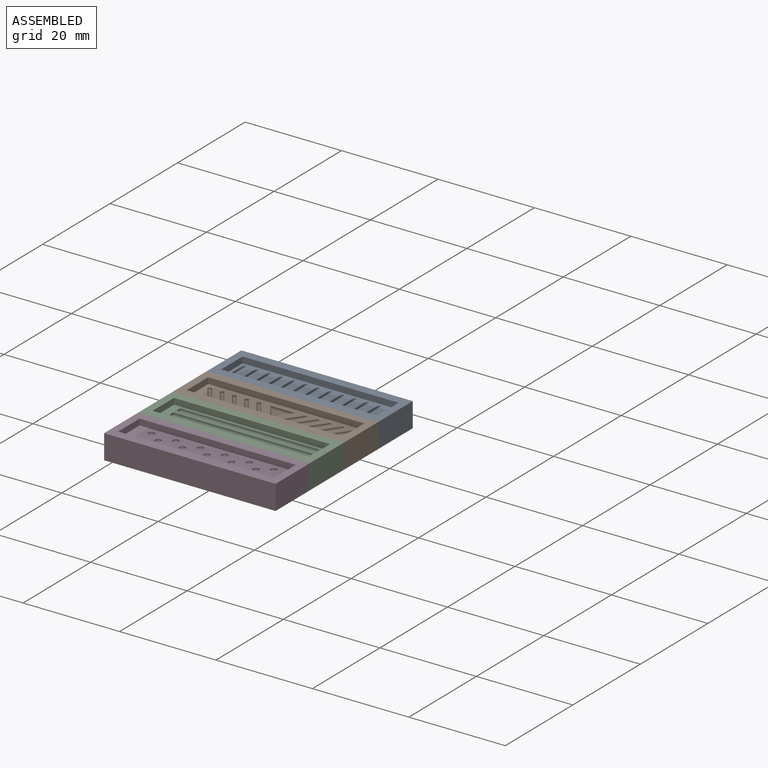
[diagram: assembled view]
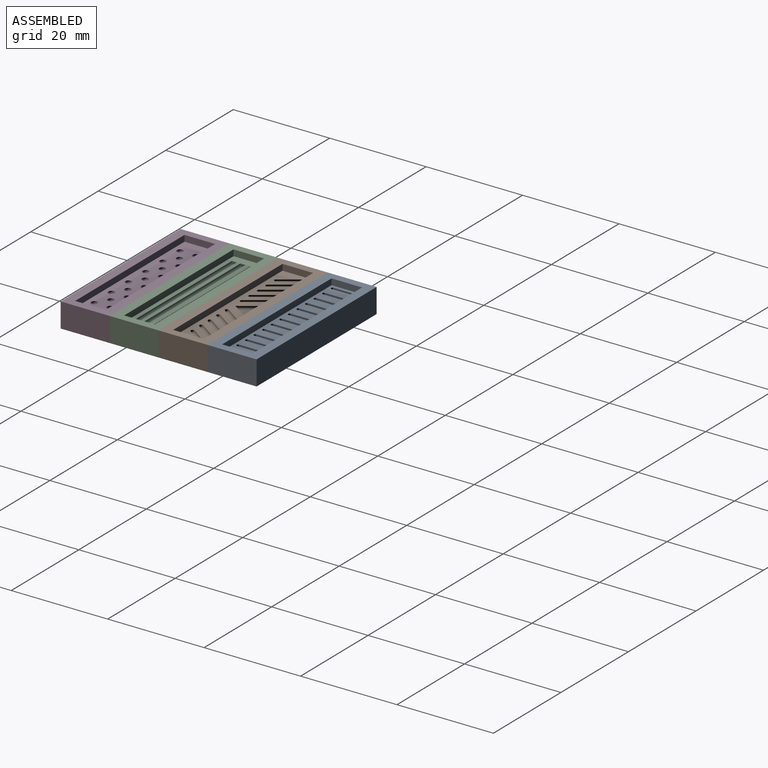
[diagram: assembled view, second angle]
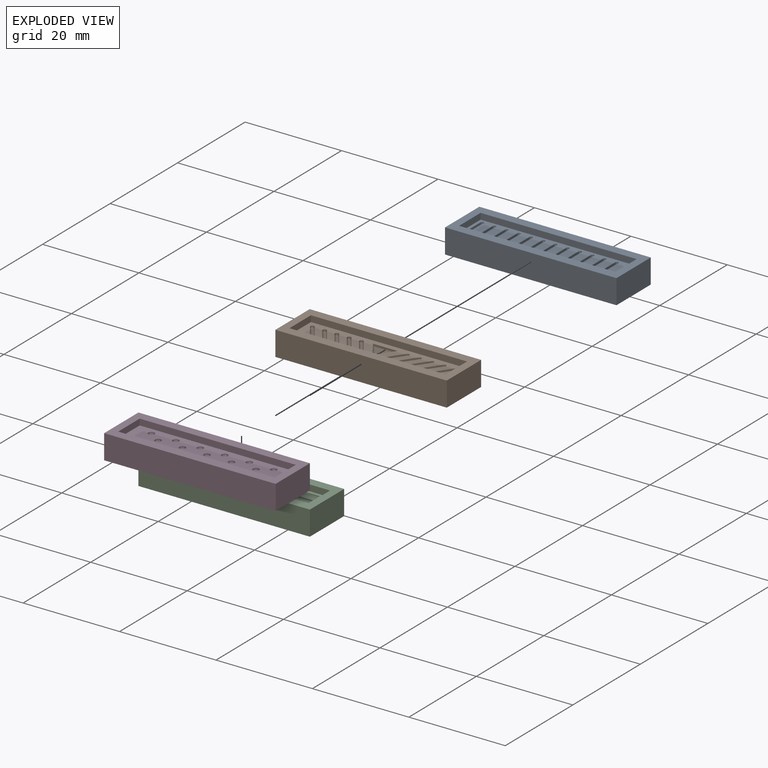
[diagram: exploded view]
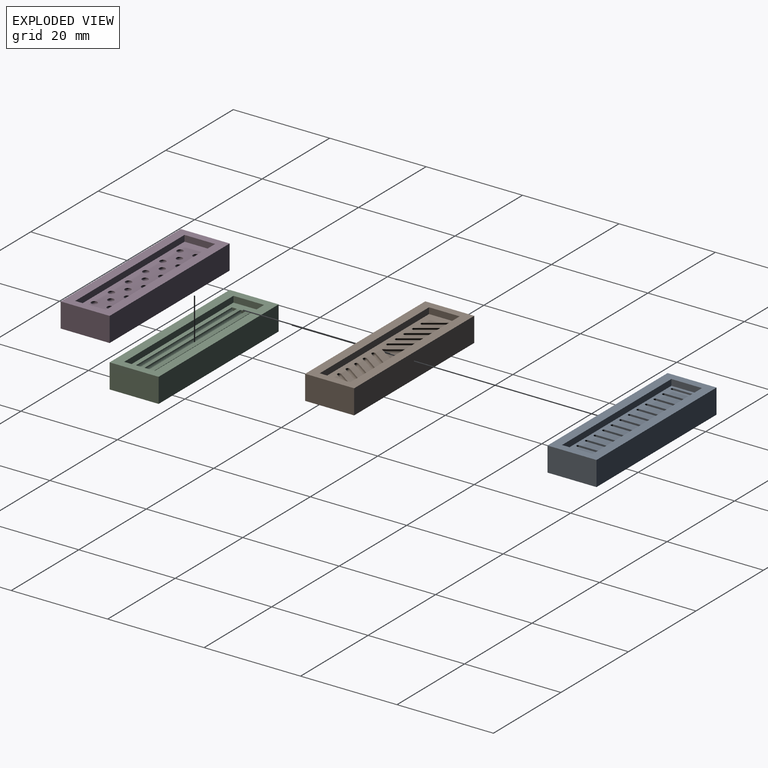
[diagram: exploded view, second angle]
ASSEMBLY  parts=4 mates=9
PART A: 128 faces, bbox 35.6x10.2x5.1 mm
  f0: plane 32.39x6.35mm, normal (0,0,1), area 163.8mm2, adj f7,f8,f9,f10,f11,f12,f13,f14
  f1: plane 10.16x5.08mm, normal (1,0,0), area 51.6mm2, adj f2,f4,f5,f6
  f2: plane 35.56x5.08mm, normal (0,1,0), area 180.6mm2, adj f1,f3,f5,f6
  f3: plane 10.16x5.08mm, normal (-1,0,0), area 51.6mm2, adj f2,f4,f5,f6
  f4: plane 35.56x5.08mm, normal (0,-1,0), area 180.6mm2, adj f1,f3,f5,f6
  f5: plane 35.56x10.16mm, normal (0,0,1), area 155.6mm2, adj f1,f2,f3,f4,f7,f8,f9,f10
  f6: plane 35.56x10.16mm, normal (0,0,-1), area 361.3mm2, adj f1,f2,f3,f4
  f7: plane 6.35x1.27mm, normal (-1,0,0), area 8.1mm2, adj f0,f5,f8,f10
  f8: plane 32.39x1.27mm, normal (0,-1,0), area 41.1mm2, adj f0,f5,f7,f9
  f9: plane 6.35x1.27mm, normal (1,0,0), area 8.1mm2, adj f0,f5,f8,f10
  f10: plane 32.39x1.27mm, normal (0,1,0), area 41.1mm2, adj f0,f5,f7,f9
  f11: cylinder r=0.32mm len=0.64mm, axis (0,0,1), area 0.4mm2, adj f0,f12,f14,f126
  f12: plane 4.57x0.38mm, normal (-1,0,0), area 1.7mm2, adj f0,f11,f13,f127
  f13: cylinder r=0.32mm len=0.64mm, axis (0,0,1), area 0.4mm2, adj f0,f12,f14,f125
  f14: plane 4.57x0.38mm, normal (1,0,0), area 1.7mm2, adj f0,f11,f13,f124
  f15: plane 4.7x0.13mm, normal (0,0,1), area 0.6mm2, adj f124,f125,f126,f127
  f16: plane 4.57x0.38mm, normal (-1,0,0), area 1.7mm2, adj f0,f17,f19,f79
  f17: cylinder r=0.32mm len=0.64mm, axis (0,0,1), area 0.4mm2, adj f0,f16,f18,f77
  f18: plane 4.57x0.38mm, normal (1,0,0), area 1.7mm2, adj f0,f17,f19,f76
  f19: cylinder r=0.32mm len=0.64mm, axis (0,0,1), area 0.4mm2, adj f0,f16,f18,f78
  f20: plane 4.7x0.13mm, normal (0,0,1), area 0.6mm2, adj f76,f77,f78,f79
  f21: plane 4.57x0.38mm, normal (-1,0,0), area 1.7mm2, adj f0,f22,f24,f83
  f22: cylinder r=0.32mm len=0.64mm, axis (0,0,1), area 0.4mm2, adj f0,f21,f23,f81
  f23: plane 4.57x0.38mm, normal (1,0,0), area 1.7mm2, adj f0,f22,f24,f80
  f24: cylinder r=0.32mm len=0.64mm, axis (0,0,1), area 0.4mm2, adj f0,f21,f23,f82
  f25: plane 4.7x0.13mm, normal (0,0,1), area 0.6mm2, adj f80,f81,f82,f83
  f26: cylinder r=0.32mm len=0.64mm, axis (0,0,1), area 0.4mm2, adj f0,f27,f29,f86
  f27: plane 4.57x0.38mm, normal (-1,0,0), area 1.7mm2, adj f0,f26,f28,f87
  f28: cylinder r=0.32mm len=0.64mm, axis (0,0,1), area 0.4mm2, adj f0,f27,f29,f85
  f29: plane 4.57x0.38mm, normal (1,0,0), area 1.7mm2, adj f0,f26,f28,f84
  f30: plane 4.7x0.13mm, normal (0,0,1), area 0.6mm2, adj f84,f85,f86,f87
  f31: cylinder r=0.32mm len=0.64mm, axis (0,0,1), area 0.4mm2, adj f0,f32,f34,f90
  f32: plane 4.57x0.38mm, normal (-1,0,0), area 1.7mm2, adj f0,f31,f33,f91
  f33: cylinder r=0.32mm len=0.64mm, axis (0,0,1), area 0.4mm2, adj f0,f32,f34,f89
  f34: plane 4.57x0.38mm, normal (1,0,0), area 1.7mm2, adj f0,f31,f33,f88
  f35: plane 4.7x0.13mm, normal (0,0,1), area 0.6mm2, adj f88,f89,f90,f91
  f36: plane 4.57x0.38mm, normal (-1,0,0), area 1.7mm2, adj f0,f37,f39,f95
  f37: cylinder r=0.32mm len=0.64mm, axis (0,0,1), area 0.4mm2, adj f0,f36,f38,f93
  f38: plane 4.57x0.38mm, normal (1,0,0), area 1.7mm2, adj f0,f37,f39,f92
  f39: cylinder r=0.32mm len=0.64mm, axis (0,0,1), area 0.4mm2, adj f0,f36,f38,f94
  f40: plane 4.7x0.13mm, normal (0,0,1), area 0.6mm2, adj f92,f93,f94,f95
  f41: plane 4.57x0.38mm, normal (-1,0,0), area 1.7mm2, adj f0,f42,f44,f99
  f42: cylinder r=0.32mm len=0.64mm, axis (0,0,1), area 0.4mm2, adj f0,f41,f43,f97
  f43: plane 4.57x0.38mm, normal (1,0,0), area 1.7mm2, adj f0,f42,f44,f96
  f44: cylinder r=0.32mm len=0.64mm, axis (0,0,1), area 0.4mm2, adj f0,f41,f43,f98
  f45: plane 4.7x0.13mm, normal (0,0,1), area 0.6mm2, adj f96,f97,f98,f99
  f46: plane 4.57x0.38mm, normal (-1,0,0), area 1.7mm2, adj f0,f47,f49,f103
  f47: cylinder r=0.32mm len=0.64mm, axis (0,0,1), area 0.4mm2, adj f0,f46,f48,f101
  f48: plane 4.57x0.38mm, normal (1,0,0), area 1.7mm2, adj f0,f47,f49,f100
  f49: cylinder r=0.32mm len=0.64mm, axis (0,0,1), area 0.4mm2, adj f0,f46,f48,f102
  f50: plane 4.7x0.13mm, normal (0,0,1), area 0.6mm2, adj f100,f101,f102,f103
  f51: plane 4.57x0.38mm, normal (-1,0,0), area 1.7mm2, adj f0,f52,f54,f107
  f52: cylinder r=0.32mm len=0.64mm, axis (0,0,1), area 0.4mm2, adj f0,f51,f53,f105
  f53: plane 4.57x0.38mm, normal (1,0,0), area 1.7mm2, adj f0,f52,f54,f104
  f54: cylinder r=0.32mm len=0.64mm, axis (0,0,1), area 0.4mm2, adj f0,f51,f53,f106
  f55: plane 4.7x0.13mm, normal (0,0,1), area 0.6mm2, adj f104,f105,f106,f107
  f56: cylinder r=0.32mm len=0.64mm, axis (0,0,1), area 0.4mm2, adj f0,f57,f59,f110
  f57: plane 4.57x0.38mm, normal (-1,0,0), area 1.7mm2, adj f0,f56,f58,f111
  f58: cylinder r=0.32mm len=0.64mm, axis (0,0,1), area 0.4mm2, adj f0,f57,f59,f109
  f59: plane 4.57x0.38mm, normal (1,0,0), area 1.7mm2, adj f0,f56,f58,f108
  f60: plane 4.7x0.13mm, normal (0,0,1), area 0.6mm2, adj f108,f109,f110,f111
  f61: cylinder r=0.32mm len=0.64mm, axis (0,0,1), area 0.4mm2, adj f0,f62,f64,f114
  f62: plane 4.57x0.38mm, normal (-1,0,0), area 1.7mm2, adj f0,f61,f63,f115
  f63: cylinder r=0.32mm len=0.64mm, axis (0,0,1), area 0.4mm2, adj f0,f62,f64,f113
  f64: plane 4.57x0.38mm, normal (1,0,0), area 1.7mm2, adj f0,f61,f63,f112
  f65: plane 4.7x0.13mm, normal (0,0,1), area 0.6mm2, adj f112,f113,f114,f115
  f66: cylinder r=0.32mm len=0.64mm, axis (0,0,1), area 0.4mm2, adj f0,f67,f69,f118
  f67: plane 4.57x0.38mm, normal (-1,0,0), area 1.7mm2, adj f0,f66,f68,f119
  f68: cylinder r=0.32mm len=0.64mm, axis (0,0,1), area 0.4mm2, adj f0,f67,f69,f117
  f69: plane 4.57x0.38mm, normal (1,0,0), area 1.7mm2, adj f0,f66,f68,f116
  f70: plane 4.7x0.13mm, normal (0,0,1), area 0.6mm2, adj f116,f117,f118,f119
  f71: cylinder r=0.32mm len=0.64mm, axis (0,0,1), area 0.4mm2, adj f0,f72,f74,f122
  f72: plane 4.57x0.38mm, normal (-1,0,0), area 1.7mm2, adj f0,f71,f73,f123
  f73: cylinder r=0.32mm len=0.64mm, axis (0,0,1), area 0.4mm2, adj f0,f72,f74,f121
  f74: plane 4.57x0.38mm, normal (1,0,0), area 1.7mm2, adj f0,f71,f73,f120
  f75: plane 4.7x0.13mm, normal (0,0,1), area 0.6mm2, adj f120,f121,f122,f123
  f76: cylinder r=0.25mm len=4.57mm, axis (0,-1,0), area 1.8mm2, adj f18,f20,f77,f78
  f77: torus R=0.06mm, axis (0,0,1), area 0.3mm2, adj f17,f20,f76,f79
  f78: torus R=0.06mm, axis (0,0,1), area 0.3mm2, adj f19,f20,f76,f79
  f79: cylinder r=0.25mm len=4.57mm, axis (0,1,0), area 1.8mm2, adj f16,f20,f77,f78
  f80: cylinder r=0.25mm len=4.57mm, axis (0,-1,0), area 1.8mm2, adj f23,f25,f81,f82
  f81: torus R=0.06mm, axis (0,0,1), area 0.3mm2, adj f22,f25,f80,f83
  f82: torus R=0.06mm, axis (0,0,1), area 0.3mm2, adj f24,f25,f80,f83
  f83: cylinder r=0.25mm len=4.57mm, axis (0,1,0), area 1.8mm2, adj f21,f25,f81,f82
  f84: cylinder r=0.25mm len=4.57mm, axis (0,-1,0), area 1.8mm2, adj f29,f30,f85,f86
  f85: torus R=0.06mm, axis (0,0,1), area 0.3mm2, adj f28,f30,f84,f87
  f86: torus R=0.06mm, axis (0,0,1), area 0.3mm2, adj f26,f30,f84,f87
  f87: cylinder r=0.25mm len=4.57mm, axis (0,1,0), area 1.8mm2, adj f27,f30,f85,f86
  f88: cylinder r=0.25mm len=4.57mm, axis (0,-1,0), area 1.8mm2, adj f34,f35,f89,f90
  f89: torus R=0.06mm, axis (0,0,1), area 0.3mm2, adj f33,f35,f88,f91
  f90: torus R=0.06mm, axis (0,0,1), area 0.3mm2, adj f31,f35,f88,f91
  f91: cylinder r=0.25mm len=4.57mm, axis (0,1,0), area 1.8mm2, adj f32,f35,f89,f90
  f92: cylinder r=0.25mm len=4.57mm, axis (0,-1,0), area 1.8mm2, adj f38,f40,f93,f94
  f93: torus R=0.06mm, axis (0,0,1), area 0.3mm2, adj f37,f40,f92,f95
  f94: torus R=0.06mm, axis (0,0,1), area 0.3mm2, adj f39,f40,f92,f95
  f95: cylinder r=0.25mm len=4.57mm, axis (0,1,0), area 1.8mm2, adj f36,f40,f93,f94
  f96: cylinder r=0.25mm len=4.57mm, axis (0,-1,0), area 1.8mm2, adj f43,f45,f97,f98
  f97: torus R=0.06mm, axis (0,0,1), area 0.3mm2, adj f42,f45,f96,f99
  f98: torus R=0.06mm, axis (0,0,1), area 0.3mm2, adj f44,f45,f96,f99
  f99: cylinder r=0.25mm len=4.57mm, axis (0,1,0), area 1.8mm2, adj f41,f45,f97,f98
  f100: cylinder r=0.25mm len=4.57mm, axis (0,-1,0), area 1.8mm2, adj f48,f50,f101,f102
  f101: torus R=0.06mm, axis (0,0,1), area 0.3mm2, adj f47,f50,f100,f103
  f102: torus R=0.06mm, axis (0,0,1), area 0.3mm2, adj f49,f50,f100,f103
  f103: cylinder r=0.25mm len=4.57mm, axis (0,1,0), area 1.8mm2, adj f46,f50,f101,f102
  f104: cylinder r=0.25mm len=4.57mm, axis (0,-1,0), area 1.8mm2, adj f53,f55,f105,f106
  f105: torus R=0.06mm, axis (0,0,1), area 0.3mm2, adj f52,f55,f104,f107
  f106: torus R=0.06mm, axis (0,0,1), area 0.3mm2, adj f54,f55,f104,f107
  f107: cylinder r=0.25mm len=4.57mm, axis (0,1,0), area 1.8mm2, adj f51,f55,f105,f106
  f108: cylinder r=0.25mm len=4.57mm, axis (0,-1,0), area 1.8mm2, adj f59,f60,f109,f110
  f109: torus R=0.06mm, axis (0,0,1), area 0.3mm2, adj f58,f60,f108,f111
  f110: torus R=0.06mm, axis (0,0,1), area 0.3mm2, adj f56,f60,f108,f111
  f111: cylinder r=0.25mm len=4.57mm, axis (0,1,0), area 1.8mm2, adj f57,f60,f109,f110
  f112: cylinder r=0.25mm len=4.57mm, axis (0,-1,0), area 1.8mm2, adj f64,f65,f113,f114
  f113: torus R=0.06mm, axis (0,0,1), area 0.3mm2, adj f63,f65,f112,f115
  f114: torus R=0.06mm, axis (0,0,1), area 0.3mm2, adj f61,f65,f112,f115
  f115: cylinder r=0.25mm len=4.57mm, axis (0,1,0), area 1.8mm2, adj f62,f65,f113,f114
  f116: cylinder r=0.25mm len=4.57mm, axis (0,-1,0), area 1.8mm2, adj f69,f70,f117,f118
  f117: torus R=0.06mm, axis (0,0,1), area 0.3mm2, adj f68,f70,f116,f119
  f118: torus R=0.06mm, axis (0,0,1), area 0.3mm2, adj f66,f70,f116,f119
  f119: cylinder r=0.25mm len=4.57mm, axis (0,1,0), area 1.8mm2, adj f67,f70,f117,f118
  f120: cylinder r=0.25mm len=4.57mm, axis (0,-1,0), area 1.8mm2, adj f74,f75,f121,f122
  f121: torus R=0.06mm, axis (0,0,1), area 0.3mm2, adj f73,f75,f120,f123
  f122: torus R=0.06mm, axis (0,0,1), area 0.3mm2, adj f71,f75,f120,f123
  f123: cylinder r=0.25mm len=4.57mm, axis (0,1,0), area 1.8mm2, adj f72,f75,f121,f122
  f124: cylinder r=0.25mm len=4.57mm, axis (0,-1,0), area 1.8mm2, adj f14,f15,f125,f126
  f125: torus R=0.06mm, axis (0,0,1), area 0.3mm2, adj f13,f15,f124,f127
  f126: torus R=0.06mm, axis (0,0,1), area 0.3mm2, adj f11,f15,f124,f127
  f127: cylinder r=0.25mm len=4.57mm, axis (0,1,0), area 1.8mm2, adj f12,f15,f125,f126
PART B: 88 faces, bbox 35.6x10.2x5.1 mm
  f0: plane 32.39x6.35mm, normal (0,0,1), area 157.8mm2, adj f7,f8,f9,f10,f11,f12,f13,f14
  f1: plane 10.16x5.08mm, normal (1,0,0), area 51.6mm2, adj f2,f4,f5,f6
  f2: plane 35.56x5.08mm, normal (0,1,0), area 180.6mm2, adj f1,f3,f5,f6
  f3: plane 10.16x5.08mm, normal (-1,0,0), area 51.6mm2, adj f2,f4,f5,f6
  f4: plane 35.56x5.08mm, normal (0,-1,0), area 180.6mm2, adj f1,f3,f5,f6
  f5: plane 35.56x10.16mm, normal (0,0,1), area 155.6mm2, adj f1,f2,f3,f4,f7,f8,f9,f10
  f6: plane 35.56x10.16mm, normal (0,0,-1), area 361.3mm2, adj f1,f2,f3,f4
  f7: plane 6.35x1.27mm, normal (-1,0,0), area 8.1mm2, adj f0,f5,f8,f10
  f8: plane 32.39x1.27mm, normal (0,-1,0), area 41.1mm2, adj f0,f5,f7,f9
  f9: plane 6.35x1.27mm, normal (1,0,0), area 8.1mm2, adj f0,f5,f8,f10
  f10: plane 32.39x1.27mm, normal (0,1,0), area 41.1mm2, adj f0,f5,f7,f9
  f11: cylinder r=0.38mm len=0.69mm, axis (0,0,1), area 0.3mm2, adj f0,f12,f14,f84
  f12: plane 3.64x2.55mm, normal (-0.82,-0.57,0), area 1.1mm2, adj f0,f11,f13,f82
  f13: cylinder r=0.38mm len=0.69mm, axis (0,0,1), area 0.3mm2, adj f0,f12,f14,f83
  f14: plane 3.64x2.55mm, normal (0.82,0.57,0), area 1.1mm2, adj f0,f11,f13,f82
  f15: plane 3.64x2.55mm, normal (0.82,-0.57,0), area 1.1mm2, adj f0,f16,f18,f55
  f16: cylinder r=0.38mm len=0.69mm, axis (0,0,1), area 0.3mm2, adj f0,f15,f17,f57
  f17: plane 3.64x2.55mm, normal (-0.82,0.57,0), area 1.1mm2, adj f0,f16,f18,f55
  f18: cylinder r=0.38mm len=0.69mm, axis (0,0,1), area 0.3mm2, adj f0,f15,f17,f56
  f19: plane 3.7x2.54mm, normal (0.82,0.57,0), area 1.1mm2, adj f0,f20,f21,f87
  f20: plane 3.7x2.54mm, normal (-0.82,0.57,0), area 1.1mm2, adj f0,f19,f21,f85
  f21: plane 5.08x0.25mm, normal (0,-1,0), area 1.3mm2, adj f0,f19,f20,f86
  f22: plane 3.64x2.64mm, normal (0,0,1), area 4.8mm2, adj f85,f86,f87
  f23: plane 3.64x2.55mm, normal (0.82,-0.57,0), area 1.1mm2, adj f0,f24,f26,f64
  f24: cylinder r=0.38mm len=0.69mm, axis (0,0,1), area 0.3mm2, adj f0,f23,f25,f66
  f25: plane 3.64x2.55mm, normal (-0.82,0.57,0), area 1.1mm2, adj f0,f24,f26,f64
  f26: cylinder r=0.38mm len=0.69mm, axis (0,0,1), area 0.3mm2, adj f0,f23,f25,f65
  f27: cylinder r=0.38mm len=0.69mm, axis (0,0,1), area 0.3mm2, adj f0,f28,f30,f68
  f28: plane 3.64x2.55mm, normal (0.82,-0.57,0), area 1.1mm2, adj f0,f27,f29,f67
  f29: cylinder r=0.38mm len=0.69mm, axis (0,0,1), area 0.3mm2, adj f0,f28,f30,f69
  f30: plane 3.64x2.55mm, normal (-0.82,0.57,0), area 1.1mm2, adj f0,f27,f29,f67
  f31: plane 3.64x2.55mm, normal (0.82,-0.57,0), area 1.1mm2, adj f0,f32,f34,f58
  f32: cylinder r=0.38mm len=0.69mm, axis (0,0,1), area 0.3mm2, adj f0,f31,f33,f60
  f33: plane 3.64x2.55mm, normal (-0.82,0.57,0), area 1.1mm2, adj f0,f32,f34,f58
  f34: cylinder r=0.38mm len=0.69mm, axis (0,0,1), area 0.3mm2, adj f0,f31,f33,f59
  f35: plane 3.64x2.55mm, normal (-0.82,0.57,0), area 1.1mm2, adj f0,f36,f38,f61
  f36: cylinder r=0.38mm len=0.69mm, axis (0,0,1), area 0.3mm2, adj f0,f35,f37,f62
  f37: plane 3.64x2.55mm, normal (0.82,-0.57,0), area 1.1mm2, adj f0,f36,f38,f61
  f38: cylinder r=0.38mm len=0.69mm, axis (0,0,1), area 0.3mm2, adj f0,f35,f37,f63
  f39: cylinder r=0.38mm len=0.69mm, axis (0,0,1), area 0.3mm2, adj f0,f40,f42,f78
  f40: plane 3.64x2.55mm, normal (-0.82,-0.57,0), area 1.1mm2, adj f0,f39,f41,f76
  f41: cylinder r=0.38mm len=0.69mm, axis (0,0,1), area 0.3mm2, adj f0,f40,f42,f77
  f42: plane 3.64x2.55mm, normal (0.82,0.57,0), area 1.1mm2, adj f0,f39,f41,f76
  f43: cylinder r=0.38mm len=0.69mm, axis (0,0,1), area 0.3mm2, adj f0,f44,f46,f81
  f44: plane 3.64x2.55mm, normal (-0.82,-0.57,0), area 1.1mm2, adj f0,f43,f45,f80
  f45: cylinder r=0.38mm len=0.69mm, axis (0,0,1), area 0.3mm2, adj f0,f44,f46,f79
  f46: plane 3.64x2.55mm, normal (0.82,0.57,0), area 1.1mm2, adj f0,f43,f45,f80
  f47: cylinder r=0.38mm len=0.69mm, axis (0,0,1), area 0.3mm2, adj f0,f48,f50,f72
  f48: plane 3.64x2.55mm, normal (-0.82,-0.57,0), area 1.1mm2, adj f0,f47,f49,f70
  f49: cylinder r=0.38mm len=0.69mm, axis (0,0,1), area 0.3mm2, adj f0,f48,f50,f71
  f50: plane 3.64x2.55mm, normal (0.82,0.57,0), area 1.1mm2, adj f0,f47,f49,f70
  f51: cylinder r=0.38mm len=0.69mm, axis (0,0,1), area 0.3mm2, adj f0,f52,f54,f75
  f52: plane 3.64x2.55mm, normal (-0.82,-0.57,0), area 1.1mm2, adj f0,f51,f53,f73
  f53: cylinder r=0.38mm len=0.69mm, axis (0,0,1), area 0.3mm2, adj f0,f52,f54,f74
  f54: plane 3.64x2.55mm, normal (0.82,0.57,0), area 1.1mm2, adj f0,f51,f53,f73
  f55: cylinder r=0.38mm len=4.08mm, axis (-0.57,-0.82,0), area 5.3mm2, adj f15,f17,f56,f57
  f56: sphere r=0.38mm, area 0.5mm2, adj f18,f55
  f57: sphere r=0.38mm, area 0.5mm2, adj f16,f55
  f58: cylinder r=0.38mm len=4.08mm, axis (-0.57,-0.82,0), area 5.3mm2, adj f31,f33,f59,f60
  f59: sphere r=0.38mm, area 0.5mm2, adj f34,f58
  f60: sphere r=0.38mm, area 0.5mm2, adj f32,f58
  f61: cylinder r=0.38mm len=4.08mm, axis (-0.57,-0.82,0), area 5.3mm2, adj f35,f37,f62,f63
  f62: sphere r=0.38mm, area 0.5mm2, adj f36,f61
  f63: sphere r=0.38mm, area 0.5mm2, adj f38,f61
  f64: cylinder r=0.38mm len=4.08mm, axis (-0.57,-0.82,0), area 5.3mm2, adj f23,f25,f65,f66
  f65: sphere r=0.38mm, area 0.5mm2, adj f26,f64
  f66: sphere r=0.38mm, area 0.5mm2, adj f24,f64
  f67: cylinder r=0.38mm len=4.08mm, axis (-0.57,-0.82,0), area 5.3mm2, adj f28,f30,f68,f69
  f68: sphere r=0.38mm, area 0.5mm2, adj f27,f67
  f69: sphere r=0.38mm, area 0.5mm2, adj f29,f67
  f70: cylinder r=0.38mm len=4.08mm, axis (0.57,-0.82,0), area 5.3mm2, adj f48,f50,f71,f72
  f71: sphere r=0.38mm, area 0.5mm2, adj f49,f70
  f72: sphere r=0.38mm, area 0.5mm2, adj f47,f70
  f73: cylinder r=0.38mm len=4.08mm, axis (0.57,-0.82,0), area 5.3mm2, adj f52,f54,f74,f75
  f74: sphere r=0.38mm, area 0.5mm2, adj f53,f73
  f75: sphere r=0.38mm, area 0.5mm2, adj f51,f73
  f76: cylinder r=0.38mm len=4.08mm, axis (0.57,-0.82,0), area 5.3mm2, adj f40,f42,f77,f78
  f77: sphere r=0.38mm, area 0.5mm2, adj f41,f76
  f78: sphere r=0.38mm, area 0.5mm2, adj f39,f76
  f79: sphere r=0.38mm, area 0.5mm2, adj f45,f80
  f80: cylinder r=0.38mm len=4.08mm, axis (-0.57,0.82,0), area 5.3mm2, adj f44,f46,f79,f81
  f81: sphere r=0.38mm, area 0.5mm2, adj f43,f80
  f82: cylinder r=0.38mm len=4.08mm, axis (0.57,-0.82,0), area 5.3mm2, adj f12,f14,f83,f84
  f83: sphere r=0.38mm, area 0.5mm2, adj f13,f82
  f84: sphere r=0.38mm, area 0.5mm2, adj f11,f82
  f85: cylinder r=0.38mm len=3.91mm, axis (0.57,0.82,0), area 2.4mm2, adj f20,f22,f86,f87
  f86: cylinder r=0.38mm len=5.08mm, axis (-1,0,0), area 2.7mm2, adj f21,f22,f85,f87
  f87: cylinder r=0.38mm len=3.91mm, axis (0.57,-0.82,0), area 2.4mm2, adj f19,f22,f85,f86
PART C: 26 faces, bbox 35.6x10.2x5.1 mm
  f0: plane 32.39x6.35mm, normal (0,0,1), area 117.4mm2, adj f7,f8,f9,f10,f11,f12,f13,f14
  f1: plane 10.16x5.08mm, normal (1,0,0), area 51.6mm2, adj f2,f4,f5,f6
  f2: plane 35.56x5.08mm, normal (0,1,0), area 180.6mm2, adj f1,f3,f5,f6
  f3: plane 10.16x5.08mm, normal (-1,0,0), area 51.6mm2, adj f2,f4,f5,f6
  f4: plane 35.56x5.08mm, normal (0,-1,0), area 180.6mm2, adj f1,f3,f5,f6
  f5: plane 35.56x10.16mm, normal (0,0,1), area 155.6mm2, adj f1,f2,f3,f4,f7,f8,f9,f10
  f6: plane 35.56x10.16mm, normal (0,0,-1), area 361.3mm2, adj f1,f2,f3,f4
  f7: plane 6.35x1.27mm, normal (-1,0,0), area 8.1mm2, adj f0,f5,f8,f10
  f8: plane 32.39x1.27mm, normal (0,-1,0), area 41.1mm2, adj f0,f5,f7,f9
  f9: plane 6.35x1.27mm, normal (1,0,0), area 8.1mm2, adj f0,f5,f8,f10
  f10: plane 32.39x1.27mm, normal (0,1,0), area 41.1mm2, adj f0,f5,f7,f9
  f11: plane 1.02x0.64mm, normal (-1,0,0), area 0.5mm2, adj f0,f12,f14,f25
  f12: plane 28.96x0.13mm, normal (0,-1,0), area 3.7mm2, adj f0,f11,f13,f25
  f13: plane 1.02x0.64mm, normal (1,0,0), area 0.5mm2, adj f0,f12,f14,f25
  f14: plane 28.96x0.13mm, normal (0,1,0), area 3.7mm2, adj f0,f11,f13,f25
  f15: plane 28.96x0.13mm, normal (0,1,0), area 3.7mm2, adj f0,f16,f18,f24
  f16: plane 1.02x0.64mm, normal (-1,0,0), area 0.5mm2, adj f0,f15,f17,f24
  f17: plane 28.96x0.13mm, normal (0,-1,0), area 3.7mm2, adj f0,f16,f18,f24
  f18: plane 1.02x0.64mm, normal (1,0,0), area 0.5mm2, adj f0,f15,f17,f24
  f19: plane 28.96x0.13mm, normal (0,1,0), area 3.7mm2, adj f0,f20,f22,f23
  f20: plane 1.02x0.64mm, normal (-1,0,0), area 0.5mm2, adj f0,f19,f21,f23
  f21: plane 28.96x0.13mm, normal (0,-1,0), area 3.7mm2, adj f0,f20,f22,f23
  f22: plane 1.02x0.64mm, normal (1,0,0), area 0.5mm2, adj f0,f19,f21,f23
  f23: cylinder r=0.51mm len=28.96mm, axis (1,0,0), area 46.2mm2, adj f19,f20,f21,f22
  f24: cylinder r=0.51mm len=28.96mm, axis (1,0,0), area 46.2mm2, adj f15,f16,f17,f18
  f25: cylinder r=0.51mm len=28.96mm, axis (1,0,0), area 46.2mm2, adj f11,f12,f13,f14
PART D: 62 faces, bbox 35.6x10.2x5.1 mm
  f0: plane 32.39x6.35mm, normal (0,0,1), area 184.1mm2, adj f7,f8,f9,f10,f11,f13,f15,f17
  f1: plane 10.16x5.08mm, normal (1,0,0), area 51.6mm2, adj f2,f4,f5,f6
  f2: plane 35.56x5.08mm, normal (0,1,0), area 180.6mm2, adj f1,f3,f5,f6
  f3: plane 10.16x5.08mm, normal (-1,0,0), area 51.6mm2, adj f2,f4,f5,f6
  f4: plane 35.56x5.08mm, normal (0,-1,0), area 180.6mm2, adj f1,f3,f5,f6
  f5: plane 35.56x10.16mm, normal (0,0,1), area 155.6mm2, adj f1,f2,f3,f4,f7,f8,f9,f10
  f6: plane 35.56x10.16mm, normal (0,0,-1), area 361.3mm2, adj f1,f2,f3,f4
  f7: plane 6.35x1.27mm, normal (-1,0,0), area 8.1mm2, adj f0,f5,f8,f10
  f8: plane 32.39x1.27mm, normal (0,-1,0), area 41.1mm2, adj f0,f5,f7,f9
  f9: plane 6.35x1.27mm, normal (1,0,0), area 8.1mm2, adj f0,f5,f8,f10
  f10: plane 32.39x1.27mm, normal (0,1,0), area 41.1mm2, adj f0,f5,f7,f9
  f11: cylinder r=0.64mm len=1.27mm, axis (0,0,1), area 0.5mm2, adj f0,f61
  f12: plane 0.25x0.25mm, normal (0,0,1), area 0.1mm2, adj f61
  f13: cylinder r=0.64mm len=1.27mm, axis (0,0,1), area 0.5mm2, adj f0,f52
  f14: plane 0.25x0.25mm, normal (0,0,1), area 0.1mm2, adj f52
  f15: cylinder r=0.64mm len=1.27mm, axis (0,0,1), area 0.5mm2, adj f0,f51
  f16: plane 0.25x0.25mm, normal (0,0,1), area 0.1mm2, adj f51
  f17: cylinder r=0.64mm len=1.27mm, axis (0,0,1), area 0.5mm2, adj f0,f50
  f18: plane 0.25x0.25mm, normal (0,0,1), area 0.1mm2, adj f50
  f19: cylinder r=0.64mm len=1.27mm, axis (0,0,1), area 0.5mm2, adj f0,f49
  f20: plane 0.25x0.25mm, normal (0,0,1), area 0.1mm2, adj f49
  f21: cylinder r=0.64mm len=1.27mm, axis (0,0,1), area 0.5mm2, adj f0,f48
  f22: plane 0.25x0.25mm, normal (0,0,1), area 0.1mm2, adj f48
  f23: cylinder r=0.64mm len=1.27mm, axis (0,0,1), area 0.5mm2, adj f0,f47
  f24: plane 0.25x0.25mm, normal (0,0,1), area 0.1mm2, adj f47
  f25: cylinder r=0.64mm len=1.27mm, axis (0,0,1), area 0.5mm2, adj f0,f46
  f26: plane 0.25x0.25mm, normal (0,0,1), area 0.1mm2, adj f46
  f27: cylinder r=0.64mm len=1.27mm, axis (0,0,1), area 0.5mm2, adj f0,f45
  f28: plane 0.25x0.25mm, normal (0,0,1), area 0.1mm2, adj f45
  f29: cylinder r=0.64mm len=1.27mm, axis (0,0,1), area 0.5mm2, adj f0,f60
  f30: plane 0.25x0.25mm, normal (0,0,1), area 0.1mm2, adj f60
  f31: cylinder r=0.64mm len=1.27mm, axis (0,0,1), area 0.5mm2, adj f0,f59
  f32: plane 0.25x0.25mm, normal (0,0,1), area 0.1mm2, adj f59
  f33: cylinder r=0.64mm len=1.27mm, axis (0,0,1), area 0.5mm2, adj f0,f58
  f34: plane 0.25x0.25mm, normal (0,0,1), area 0.1mm2, adj f58
  f35: cylinder r=0.64mm len=1.27mm, axis (0,0,1), area 0.5mm2, adj f0,f57
  f36: plane 0.25x0.25mm, normal (0,0,1), area 0.1mm2, adj f57
  f37: cylinder r=0.64mm len=1.27mm, axis (0,0,1), area 0.5mm2, adj f0,f56
  f38: plane 0.25x0.25mm, normal (0,0,1), area 0.1mm2, adj f56
  f39: cylinder r=0.64mm len=1.27mm, axis (0,0,1), area 0.5mm2, adj f0,f55
  f40: plane 0.25x0.25mm, normal (0,0,1), area 0.1mm2, adj f55
  f41: cylinder r=0.64mm len=1.27mm, axis (0,0,1), area 0.5mm2, adj f0,f54
  f42: plane 0.25x0.25mm, normal (0,0,1), area 0.1mm2, adj f54
  f43: cylinder r=0.64mm len=1.27mm, axis (0,0,1), area 0.5mm2, adj f0,f53
  f44: plane 0.25x0.25mm, normal (0,0,1), area 0.1mm2, adj f53
  f45: torus R=0.13mm, axis (0,0,1), area 2.3mm2, adj f27,f28
  f46: torus R=0.13mm, axis (0,0,1), area 2.3mm2, adj f25,f26
  f47: torus R=0.13mm, axis (0,0,1), area 2.3mm2, adj f23,f24
  f48: torus R=0.13mm, axis (0,0,1), area 2.3mm2, adj f21,f22
  f49: torus R=0.13mm, axis (0,0,1), area 2.3mm2, adj f19,f20
  f50: torus R=0.13mm, axis (0,0,1), area 2.3mm2, adj f17,f18
  f51: torus R=0.13mm, axis (0,0,1), area 2.3mm2, adj f15,f16
  f52: torus R=0.13mm, axis (0,0,1), area 2.3mm2, adj f13,f14
  f53: torus R=0.13mm, axis (0,0,1), area 2.3mm2, adj f43,f44
  f54: torus R=0.13mm, axis (0,0,1), area 2.3mm2, adj f41,f42
  f55: torus R=0.13mm, axis (0,0,1), area 2.3mm2, adj f39,f40
  f56: torus R=0.13mm, axis (0,0,1), area 2.3mm2, adj f37,f38
  f57: torus R=0.13mm, axis (0,0,1), area 2.3mm2, adj f35,f36
  f58: torus R=0.13mm, axis (0,0,1), area 2.3mm2, adj f33,f34
  f59: torus R=0.13mm, axis (0,0,1), area 2.3mm2, adj f31,f32
  f60: torus R=0.13mm, axis (0,0,1), area 2.3mm2, adj f29,f30
  f61: torus R=0.13mm, axis (0,0,1), area 2.3mm2, adj f11,f12
PLACE A t=(-12.15,13.73,8.3)mm
PLACE B t=(-12.15,3.57,8.3)mm
PLACE C t=(-12.15,-6.59,8.3)mm
PLACE D t=(-12.15,-16.75,8.3)mm
MATE planar C.f6 <-> B.f6  axis (0,0,-1) through (-12.15,-6.59,8.3)mm
MATE planar A.f4 <-> B.f2  axis (0,-1,0) through (-12.15,8.65,10.84)mm
MATE planar A.f1 <-> B.f1  axis (1,0,0) through (5.63,13.73,10.84)mm
MATE planar C.f1 <-> B.f1  axis (1,0,0) through (5.63,-6.59,10.84)mm
MATE planar D.f1 <-> C.f1  axis (1,0,0) through (5.63,-16.75,10.84)mm
MATE planar B.f4 <-> C.f2  axis (0,-1,0) through (-12.15,-1.51,10.84)mm
MATE planar C.f6 <-> D.f43  axis (0,0,-1) through (-12.15,-6.59,8.3)mm
MATE planar A.f6 <-> B.f6  axis (0,0,-1) through (-12.15,13.73,8.3)mm
MATE planar D.f2 <-> C.f4  axis (0,1,0) through (5.63,-11.67,13.38)mm
